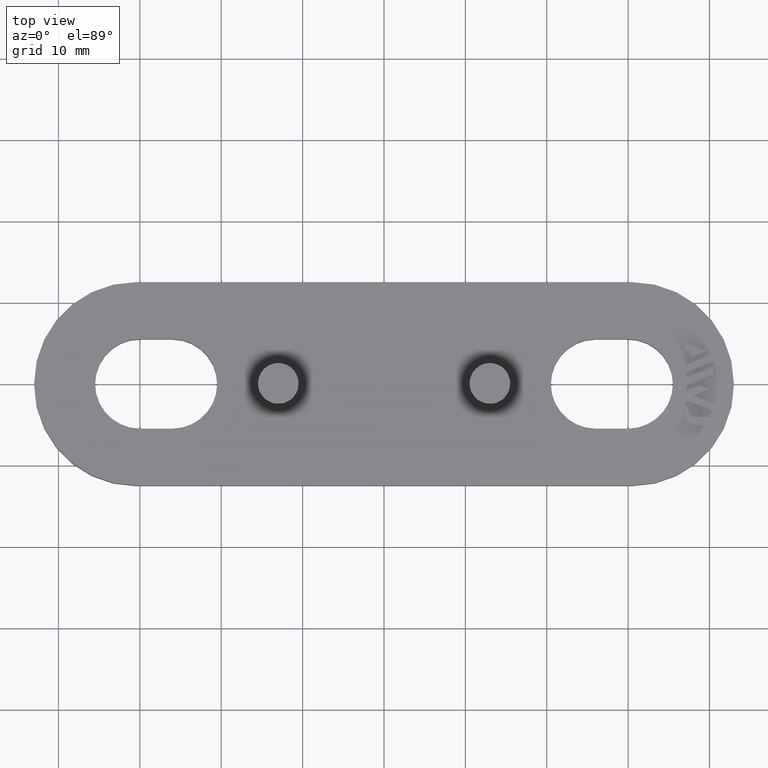
[diagram: clean part render]
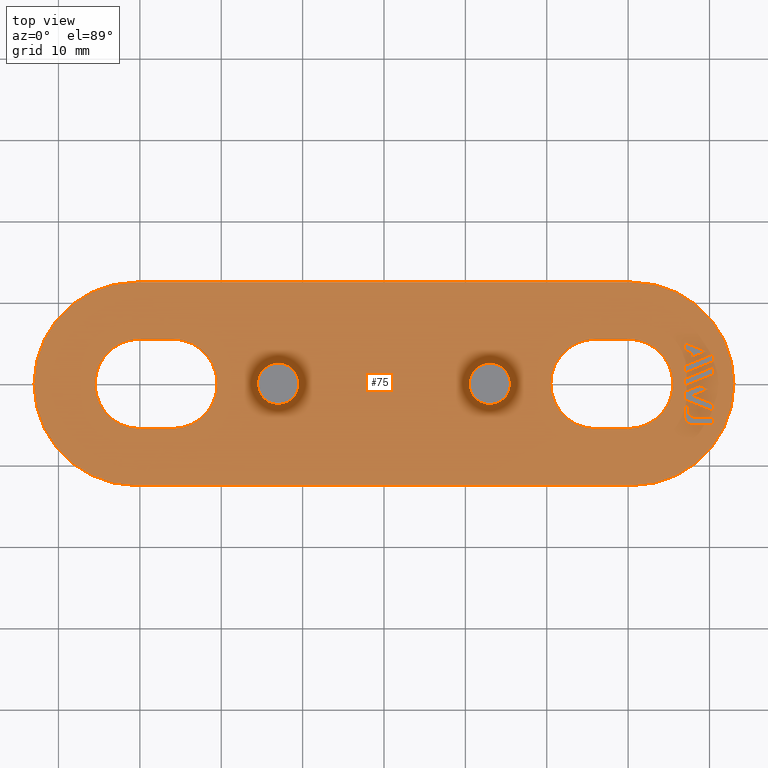
[diagram: same view with one face highlighted and labeled with its STEP entity id]
A machine part, top view. The second image highlights one B-rep face of the part: STEP entity #75.
In plain terms, the highlighted planar face has unit normal (0, -0, -1).
Its self-contained STEP definition (entity closure, byte-faithful):
#75 = ADVANCED_FACE( '', ( #354, #355, #356, #357, #358, #359, #360, #361, #362, #363 ), #364, .F. );
#354 = FACE_OUTER_BOUND( '', #962, .T. );
#355 = FACE_BOUND( '', #963, .T. );
#356 = FACE_BOUND( '', #964, .T. );
#357 = FACE_BOUND( '', #965, .T. );
#358 = FACE_BOUND( '', #966, .T. );
#359 = FACE_BOUND( '', #967, .T. );
#360 = FACE_BOUND( '', #968, .T. );
#361 = FACE_BOUND( '', #969, .T. );
#362 = FACE_BOUND( '', #970, .T. );
#363 = FACE_BOUND( '', #971, .T. );
#364 = PLANE( '', #972 );
#962 = EDGE_LOOP( '', ( #1570, #1571, #1572, #1573, #1574, #1575 ) );
#963 = EDGE_LOOP( '', ( #1576, #1577, #1578, #1579, #1580, #1581, #1582 ) );
#964 = EDGE_LOOP( '', ( #1583, #1584, #1585, #1586 ) );
#965 = EDGE_LOOP( '', ( #1587, #1588, #1589, #1590, #1591, #1592 ) );
#966 = EDGE_LOOP( '', ( #1593, #1594, #1595, #1596, #1597, #1598 ) );
#967 = EDGE_LOOP( '', ( #1599 ) );
#968 = EDGE_LOOP( '', ( #1600 ) );
#969 = EDGE_LOOP( '', ( #1601, #1602, #1603, #1604, #1605 ) );
#970 = EDGE_LOOP( '', ( #1606, #1607, #1608, #1609 ) );
#971 = EDGE_LOOP( '', ( #1610, #1611, #1612, #1613, #1614, #1615, #1616, #1617 ) );
#972 = AXIS2_PLACEMENT_3D( '', #1618, #1619, #1620 );
#1570 = ORIENTED_EDGE( '', *, *, #3796, .F. );
#1571 = ORIENTED_EDGE( '', *, *, #3797, .F. );
#1572 = ORIENTED_EDGE( '', *, *, #3798, .F. );
#1573 = ORIENTED_EDGE( '', *, *, #3799, .F. );
#1574 = ORIENTED_EDGE( '', *, *, #3800, .F. );
#1575 = ORIENTED_EDGE( '', *, *, #3801, .F. );
#1576 = ORIENTED_EDGE( '', *, *, #3802, .F. );
#1577 = ORIENTED_EDGE( '', *, *, #3803, .F. );
#1578 = ORIENTED_EDGE( '', *, *, #3804, .F. );
#1579 = ORIENTED_EDGE( '', *, *, #3805, .F. );
#1580 = ORIENTED_EDGE( '', *, *, #3806, .F. );
#1581 = ORIENTED_EDGE( '', *, *, #3807, .F. );
#1582 = ORIENTED_EDGE( '', *, *, #3808, .F. );
#1583 = ORIENTED_EDGE( '', *, *, #3809, .F. );
#1584 = ORIENTED_EDGE( '', *, *, #3810, .F. );
#1585 = ORIENTED_EDGE( '', *, *, #3811, .F. );
#1586 = ORIENTED_EDGE( '', *, *, #3812, .F. );
#1587 = ORIENTED_EDGE( '', *, *, #3813, .F. );
#1588 = ORIENTED_EDGE( '', *, *, #3814, .F. );
#1589 = ORIENTED_EDGE( '', *, *, #3815, .F. );
#1590 = ORIENTED_EDGE( '', *, *, #3816, .F. );
#1591 = ORIENTED_EDGE( '', *, *, #3817, .F. );
#1592 = ORIENTED_EDGE( '', *, *, #3818, .F. );
#1593 = ORIENTED_EDGE( '', *, *, #3819, .F. );
#1594 = ORIENTED_EDGE( '', *, *, #3820, .F. );
#1595 = ORIENTED_EDGE( '', *, *, #3821, .F. );
#1596 = ORIENTED_EDGE( '', *, *, #3822, .F. );
#1597 = ORIENTED_EDGE( '', *, *, #3823, .F. );
#1598 = ORIENTED_EDGE( '', *, *, #3824, .F. );
#1599 = ORIENTED_EDGE( '', *, *, #3825, .T. );
#1600 = ORIENTED_EDGE( '', *, *, #3826, .T. );
#1601 = ORIENTED_EDGE( '', *, *, #3827, .F. );
#1602 = ORIENTED_EDGE( '', *, *, #3828, .F. );
#1603 = ORIENTED_EDGE( '', *, *, #3829, .F. );
#1604 = ORIENTED_EDGE( '', *, *, #3830, .F. );
#1605 = ORIENTED_EDGE( '', *, *, #3831, .F. );
#1606 = ORIENTED_EDGE( '', *, *, #3832, .F. );
#1607 = ORIENTED_EDGE( '', *, *, #3833, .F. );
#1608 = ORIENTED_EDGE( '', *, *, #3834, .F. );
#1609 = ORIENTED_EDGE( '', *, *, #3835, .F. );
#1610 = ORIENTED_EDGE( '', *, *, #3836, .F. );
#1611 = ORIENTED_EDGE( '', *, *, #3837, .F. );
#1612 = ORIENTED_EDGE( '', *, *, #3838, .F. );
#1613 = ORIENTED_EDGE( '', *, *, #3839, .F. );
#1614 = ORIENTED_EDGE( '', *, *, #3840, .F. );
#1615 = ORIENTED_EDGE( '', *, *, #3841, .F. );
#1616 = ORIENTED_EDGE( '', *, *, #3842, .F. );
#1617 = ORIENTED_EDGE( '', *, *, #3843, .F. );
#1618 = CARTESIAN_POINT( '', ( 30.5000000000000, 3.06151588455594E-016, 4.99999999999999 ) );
#1619 = DIRECTION( '', ( 0.000000000000000, -6.12303176911189E-017, -1.00000000000000 ) );
#1620 = DIRECTION( '', ( 0.000000000000000, -1.00000000000000, 6.12303176911189E-017 ) );
#3796 = EDGE_CURVE( '', #4492, #4493, #4494, .T. );
#3797 = EDGE_CURVE( '', #4495, #4492, #4496, .T. );
#3798 = EDGE_CURVE( '', #4497, #4495, #4498, .T. );
#3799 = EDGE_CURVE( '', #4499, #4497, #4500, .T. );
#3800 = EDGE_CURVE( '', #4501, #4499, #4502, .T. );
#3801 = EDGE_CURVE( '', #4493, #4501, #4503, .T. );
#3802 = EDGE_CURVE( '', #4504, #4505, #4506, .T. );
#3803 = EDGE_CURVE( '', #4507, #4504, #4508, .T. );
#3804 = EDGE_CURVE( '', #4509, #4507, #4510, .T. );
#3805 = EDGE_CURVE( '', #4511, #4509, #4512, .T. );
#3806 = EDGE_CURVE( '', #4513, #4511, #4514, .T. );
#3807 = EDGE_CURVE( '', #4515, #4513, #4516, .T. );
#3808 = EDGE_CURVE( '', #4505, #4515, #4517, .T. );
#3809 = EDGE_CURVE( '', #4518, #4519, #4520, .T. );
#3810 = EDGE_CURVE( '', #4521, #4518, #4522, .T. );
#3811 = EDGE_CURVE( '', #4523, #4521, #4524, .T. );
#3812 = EDGE_CURVE( '', #4519, #4523, #4525, .T. );
#3813 = EDGE_CURVE( '', #4526, #4527, #4528, .T. );
#3814 = EDGE_CURVE( '', #4529, #4526, #4530, .T. );
#3815 = EDGE_CURVE( '', #4531, #4529, #4532, .T. );
#3816 = EDGE_CURVE( '', #4533, #4531, #4534, .T. );
#3817 = EDGE_CURVE( '', #4535, #4533, #4536, .T. );
#3818 = EDGE_CURVE( '', #4527, #4535, #4537, .T. );
#3819 = EDGE_CURVE( '', #4538, #4539, #4540, .T. );
#3820 = EDGE_CURVE( '', #4541, #4538, #4542, .T. );
#3821 = EDGE_CURVE( '', #4543, #4541, #4544, .T. );
#3822 = EDGE_CURVE( '', #4545, #4543, #4546, .T. );
#3823 = EDGE_CURVE( '', #4547, #4545, #4548, .T. );
#3824 = EDGE_CURVE( '', #4539, #4547, #4549, .T. );
#3825 = EDGE_CURVE( '', #4550, #4550, #4551, .T. );
#3826 = EDGE_CURVE( '', #4552, #4552, #4553, .T. );
#3827 = EDGE_CURVE( '', #4554, #4555, #4556, .T. );
#3828 = EDGE_CURVE( '', #4557, #4554, #4558, .T. );
#3829 = EDGE_CURVE( '', #4559, #4557, #4560, .T. );
#3830 = EDGE_CURVE( '', #4561, #4559, #4562, .T. );
#3831 = EDGE_CURVE( '', #4555, #4561, #4563, .T. );
#3832 = EDGE_CURVE( '', #4564, #4565, #4566, .T. );
#3833 = EDGE_CURVE( '', #4567, #4564, #4568, .T. );
#3834 = EDGE_CURVE( '', #4569, #4567, #4570, .T. );
#3835 = EDGE_CURVE( '', #4565, #4569, #4571, .T. );
#3836 = EDGE_CURVE( '', #4572, #4573, #4574, .T. );
#3837 = EDGE_CURVE( '', #4575, #4572, #4576, .T. );
#3838 = EDGE_CURVE( '', #4577, #4575, #4578, .T. );
#3839 = EDGE_CURVE( '', #4579, #4577, #4580, .T. );
#3840 = EDGE_CURVE( '', #4581, #4579, #4582, .T. );
#3841 = EDGE_CURVE( '', #4583, #4581, #4584, .T. );
#3842 = EDGE_CURVE( '', #4585, #4583, #4586, .T. );
#3843 = EDGE_CURVE( '', #4573, #4585, #4587, .T. );
#4492 = VERTEX_POINT( '', #5656 );
#4493 = VERTEX_POINT( '', #5657 );
#4494 = CIRCLE( '', #5658, 12.5000000000000 );
#4495 = VERTEX_POINT( '', #5659 );
#4496 = CIRCLE( '', #5660, 12.5000000000000 );
#4497 = VERTEX_POINT( '', #5661 );
#4498 = LINE( '', #5662, #5663 );
#4499 = VERTEX_POINT( '', #5664 );
#4500 = CIRCLE( '', #5665, 12.5000000000000 );
#4501 = VERTEX_POINT( '', #5666 );
#4502 = CIRCLE( '', #5667, 12.5000000000000 );
#4503 = LINE( '', #5668, #5669 );
#4504 = VERTEX_POINT( '', #5670 );
#4505 = VERTEX_POINT( '', #5671 );
#4506 = LINE( '', #5672, #5673 );
#4507 = VERTEX_POINT( '', #5674 );
#4508 = LINE( '', #5675, #5676 );
#4509 = VERTEX_POINT( '', #5677 );
#4510 = LINE( '', #5678, #5679 );
#4511 = VERTEX_POINT( '', #5680 );
#4512 = LINE( '', #5681, #5682 );
#4513 = VERTEX_POINT( '', #5683 );
#4514 = LINE( '', #5684, #5685 );
#4515 = VERTEX_POINT( '', #5686 );
#4516 = LINE( '', #5687, #5688 );
#4517 = LINE( '', #5689, #5690 );
#4518 = VERTEX_POINT( '', #5691 );
#4519 = VERTEX_POINT( '', #5692 );
#4520 = LINE( '', #5693, #5694 );
#4521 = VERTEX_POINT( '', #5695 );
#4522 = LINE( '', #5696, #5697 );
#4523 = VERTEX_POINT( '', #5698 );
#4524 = LINE( '', #5699, #5700 );
#4525 = LINE( '', #5701, #5702 );
#4526 = VERTEX_POINT( '', #5703 );
#4527 = VERTEX_POINT( '', #5704 );
#4528 = CIRCLE( '', #5705, 5.50000000000000 );
#4529 = VERTEX_POINT( '', #5706 );
#4530 = CIRCLE( '', #5707, 5.50000000000000 );
#4531 = VERTEX_POINT( '', #5708 );
#4532 = LINE( '', #5709, #5710 );
#4533 = VERTEX_POINT( '', #5711 );
#4534 = CIRCLE( '', #5712, 5.50000000000000 );
#4535 = VERTEX_POINT( '', #5713 );
#4536 = CIRCLE( '', #5714, 5.50000000000000 );
#4537 = LINE( '', #5715, #5716 );
#4538 = VERTEX_POINT( '', #5717 );
#4539 = VERTEX_POINT( '', #5718 );
#4540 = CIRCLE( '', #5719, 5.50000000000000 );
#4541 = VERTEX_POINT( '', #5720 );
#4542 = CIRCLE( '', #5721, 5.50000000000000 );
#4543 = VERTEX_POINT( '', #5722 );
#4544 = LINE( '', #5723, #5724 );
#4545 = VERTEX_POINT( '', #5725 );
#4546 = CIRCLE( '', #5726, 5.50000000000000 );
#4547 = VERTEX_POINT( '', #5727 );
#4548 = CIRCLE( '', #5728, 5.50000000000000 );
#4549 = LINE( '', #5729, #5730 );
#4550 = VERTEX_POINT( '', #5731 );
#4551 = CIRCLE( '', #5732, 2.54363766232054 );
#4552 = VERTEX_POINT( '', #5733 );
#4553 = CIRCLE( '', #5734, 2.54363766232054 );
#4554 = VERTEX_POINT( '', #5735 );
#4555 = VERTEX_POINT( '', #5736 );
#4556 = LINE( '', #5737, #5738 );
#4557 = VERTEX_POINT( '', #5739 );
#4558 = LINE( '', #5740, #5741 );
#4559 = VERTEX_POINT( '', #5742 );
#4560 = LINE( '', #5743, #5744 );
#4561 = VERTEX_POINT( '', #5745 );
#4562 = LINE( '', #5746, #5747 );
#4563 = LINE( '', #5748, #5749 );
#4564 = VERTEX_POINT( '', #5750 );
#4565 = VERTEX_POINT( '', #5751 );
#4566 = LINE( '', #5752, #5753 );
#4567 = VERTEX_POINT( '', #5754 );
#4568 = LINE( '', #5755, #5756 );
#4569 = VERTEX_POINT( '', #5757 );
#4570 = LINE( '', #5758, #5759 );
#4571 = LINE( '', #5760, #5761 );
#4572 = VERTEX_POINT( '', #5762 );
#4573 = VERTEX_POINT( '', #5763 );
#4574 = CIRCLE( '', #5764, 1.20000000000000 );
#4575 = VERTEX_POINT( '', #5765 );
#4576 = LINE( '', #5766, #5767 );
#4577 = VERTEX_POINT( '', #5768 );
#4578 = LINE( '', #5769, #5770 );
#4579 = VERTEX_POINT( '', #5771 );
#4580 = LINE( '', #5772, #5773 );
#4581 = VERTEX_POINT( '', #5774 );
#4582 = CIRCLE( '', #5775, 0.800000000000002 );
#4583 = VERTEX_POINT( '', #5776 );
#4584 = LINE( '', #5777, #5778 );
#4585 = VERTEX_POINT( '', #5779 );
#4586 = LINE( '', #5780, #5781 );
#4587 = LINE( '', #5782, #5783 );
#5656 = CARTESIAN_POINT( '', ( 43.0000000000000, 3.06151588455594E-016, 4.99999999999999 ) );
#5657 = CARTESIAN_POINT( '', ( 30.5000000000000, -12.5000000000000, 4.99999999999999 ) );
#5658 = AXIS2_PLACEMENT_3D( '', #7436, #7437, #7438 );
#5659 = CARTESIAN_POINT( '', ( 30.5000000000000, 12.5000000000000, 4.99999999999999 ) );
#5660 = AXIS2_PLACEMENT_3D( '', #7439, #7440, #7441 );
#5661 = CARTESIAN_POINT( '', ( -30.5000000000000, 12.5000000000000, 4.99999999999999 ) );
#5662 = CARTESIAN_POINT( '', ( -30.5000000000000, 12.5000000000000, 4.99999999999999 ) );
#5663 = VECTOR( '', #7442, 1000.00000000000 );
#5664 = CARTESIAN_POINT( '', ( -43.0000000000000, -1.42857188752121E-015, 4.99999999999999 ) );
#5665 = AXIS2_PLACEMENT_3D( '', #7443, #7444, #7445 );
#5666 = CARTESIAN_POINT( '', ( -30.5000000000000, -12.5000000000000, 4.99999999999999 ) );
#5667 = AXIS2_PLACEMENT_3D( '', #7446, #7447, #7448 );
#5668 = CARTESIAN_POINT( '', ( 30.5000000000000, -12.5000000000000, 4.99999999999999 ) );
#5669 = VECTOR( '', #7449, 1000.00000000000 );
#5670 = CARTESIAN_POINT( '', ( 36.9000000000000, -1.94153815900080, 4.99999999999999 ) );
#5671 = CARTESIAN_POINT( '', ( 40.4973661704647, -3.39489558569053, 4.99999999999999 ) );
#5672 = CARTESIAN_POINT( '', ( 36.9000000000000, -1.94153815900079, 4.99999999999999 ) );
#5673 = VECTOR( '', #7450, 1000.00000000000 );
#5674 = CARTESIAN_POINT( '', ( 36.9000000000000, -0.958868987414756, 4.99999999999999 ) );
#5675 = CARTESIAN_POINT( '', ( 36.9000000000000, -0.958868987414757, 4.99999999999999 ) );
#5676 = VECTOR( '', #7451, 1000.00000000000 );
#5677 = CARTESIAN_POINT( '', ( 38.7327570440905, -0.218257757464984, 4.99999999999999 ) );
#5678 = CARTESIAN_POINT( '', ( 38.7327570440905, -0.218257757464979, 4.99999999999999 ) );
#5679 = VECTOR( '', #7452, 1000.00000000000 );
#5680 = CARTESIAN_POINT( '', ( 39.8833737475896, -0.683055647481180, 4.99999999999999 ) );
#5681 = CARTESIAN_POINT( '', ( 39.8833737475896, -0.683055647481184, 4.99999999999999 ) );
#5682 = VECTOR( '', #7453, 1000.00000000000 );
#5683 = CARTESIAN_POINT( '', ( 37.9849571645033, -1.45010139340523, 4.99999999999999 ) );
#5684 = CARTESIAN_POINT( '', ( 37.9849571645033, -1.45010139340523, 4.99999999999999 ) );
#5685 = VECTOR( '', #7454, 1000.00000000000 );
#5686 = CARTESIAN_POINT( '', ( 40.4973661704647, -2.46529980565813, 4.99999999999999 ) );
#5687 = CARTESIAN_POINT( '', ( 40.4973661704647, -2.46529980565813, 4.99999999999999 ) );
#5688 = VECTOR( '', #7455, 1000.00000000000 );
#5689 = CARTESIAN_POINT( '', ( 40.4973661704647, -3.39489558569053, 4.99999999999999 ) );
#5690 = VECTOR( '', #7456, 1000.00000000000 );
#5691 = CARTESIAN_POINT( '', ( 36.9000000000000, 1.30847678860039, 4.99999999999999 ) );
#5692 = CARTESIAN_POINT( '', ( 40.4973661704647, 2.76206261720167, 4.99999999999999 ) );
#5693 = CARTESIAN_POINT( '', ( 36.9000000000000, 1.30847678860038, 4.99999999999999 ) );
#5694 = VECTOR( '', #7457, 1000.00000000000 );
#5695 = CARTESIAN_POINT( '', ( 36.9000000000000, 2.23799443113673, 4.99999999999999 ) );
#5696 = CARTESIAN_POINT( '', ( 36.9000000000000, 2.23799443113673, 4.99999999999999 ) );
#5697 = VECTOR( '', #7458, 1000.00000000000 );
#5698 = CARTESIAN_POINT( '', ( 40.4973661704647, 3.69137590013294, 4.99999999999999 ) );
#5699 = CARTESIAN_POINT( '', ( 40.4973661704647, 3.69137590013294, 4.99999999999999 ) );
#5700 = VECTOR( '', #7459, 1000.00000000000 );
#5701 = CARTESIAN_POINT( '', ( 40.4973661704647, 2.76206261720167, 4.99999999999999 ) );
#5702 = VECTOR( '', #7460, 1000.00000000000 );
#5703 = CARTESIAN_POINT( '', ( -20.5000000000000, 1.17351344890300E-015, 5.00000199997327 ) );
#5704 = CARTESIAN_POINT( '', ( -26.0000000000000, 5.50000000000000, 5.00000199997327 ) );
#5705 = AXIS2_PLACEMENT_3D( '', #7461, #7462, #7463 );
#5706 = CARTESIAN_POINT( '', ( -26.0000000000000, -5.50000000000000, 5.00000199997327 ) );
#5707 = AXIS2_PLACEMENT_3D( '', #7464, #7465, #7466 );
#5708 = CARTESIAN_POINT( '', ( -30.0000000000000, -5.50000000000000, 5.00000199997327 ) );
#5709 = CARTESIAN_POINT( '', ( -30.0000000000000, -5.50000000000000, 5.00000199997327 ) );
#5710 = VECTOR( '', #7467, 1000.00000000000 );
#5711 = CARTESIAN_POINT( '', ( -35.5000000000000, -2.29593350305062E-015, 5.00000199997327 ) );
#5712 = AXIS2_PLACEMENT_3D( '', #7468, #7469, #7470 );
#5713 = CARTESIAN_POINT( '', ( -30.0000000000000, 5.50000000000000, 5.00000199997327 ) );
#5714 = AXIS2_PLACEMENT_3D( '', #7471, #7472, #7473 );
#5715 = CARTESIAN_POINT( '', ( -26.0000000000000, 5.50000000000000, 5.00000199997327 ) );
#5716 = VECTOR( '', #7474, 1000.00000000000 );
#5717 = CARTESIAN_POINT( '', ( 35.5000000000000, 3.77559884655916E-015, 5.00000499997327 ) );
#5718 = CARTESIAN_POINT( '', ( 30.0000000000000, 5.50000000000000, 5.00000499997327 ) );
#5719 = AXIS2_PLACEMENT_3D( '', #7475, #7476, #7477 );
#5720 = CARTESIAN_POINT( '', ( 30.0000000000000, -5.49999999999999, 5.00000499997327 ) );
#5721 = AXIS2_PLACEMENT_3D( '', #7478, #7479, #7480 );
#5722 = CARTESIAN_POINT( '', ( 26.0000000000000, -5.50000000000000, 5.00000499997327 ) );
#5723 = CARTESIAN_POINT( '', ( 26.0000000000000, -5.49999999999999, 5.00000499997327 ) );
#5724 = VECTOR( '', #7481, 1000.00000000000 );
#5725 = CARTESIAN_POINT( '', ( 20.5000000000000, 2.90823710857076E-015, 5.00000499997327 ) );
#5726 = AXIS2_PLACEMENT_3D( '', #7482, #7483, #7484 );
#5727 = CARTESIAN_POINT( '', ( 26.0000000000000, 5.50000000000000, 5.00000499997327 ) );
#5728 = AXIS2_PLACEMENT_3D( '', #7485, #7486, #7487 );
#5729 = CARTESIAN_POINT( '', ( 30.0000000000000, 5.50000000000000, 5.00000499997327 ) );
#5730 = VECTOR( '', #7488, 1000.00000000000 );
#5731 = CARTESIAN_POINT( '', ( -13.0000000000000, 2.54380278691939, 4.99999999999999 ) );
#5732 = AXIS2_PLACEMENT_3D( '', #7489, #7490, #7491 );
#5733 = CARTESIAN_POINT( '', ( 13.0000000000000, 2.54347253772170, 4.99999999999999 ) );
#5734 = AXIS2_PLACEMENT_3D( '', #7492, #7493, #7494 );
#5735 = CARTESIAN_POINT( '', ( 36.9000000000000, 4.13597825270630, 4.99999999999999 ) );
#5736 = CARTESIAN_POINT( '', ( 37.7308540273208, 3.80004712542057, 4.99999999999999 ) );
#5737 = CARTESIAN_POINT( '', ( 36.9000000000000, 4.13597825270630, 4.99999999999999 ) );
#5738 = VECTOR( '', #7495, 1000.00000000000 );
#5739 = CARTESIAN_POINT( '', ( 36.9000000000000, 5.06529153563756, 4.99999999999999 ) );
#5740 = CARTESIAN_POINT( '', ( 36.9000000000000, 5.06529153563756, 4.99999999999999 ) );
#5741 = VECTOR( '', #7496, 1000.00000000000 );
#5742 = CARTESIAN_POINT( '', ( 39.5972101947165, 3.97568819540704, 4.99999999999999 ) );
#5743 = CARTESIAN_POINT( '', ( 39.5972101947165, 3.97568819540703, 4.99999999999999 ) );
#5744 = VECTOR( '', #7497, 1000.00000000000 );
#5745 = CARTESIAN_POINT( '', ( 37.7308540273208, 3.22197991900252, 4.99999999999999 ) );
#5746 = CARTESIAN_POINT( '', ( 37.7308540273208, 3.22197991900252, 4.99999999999999 ) );
#5747 = VECTOR( '', #7498, 1000.00000000000 );
#5748 = CARTESIAN_POINT( '', ( 37.7308540273208, 3.80004712542057, 4.99999999999999 ) );
#5749 = VECTOR( '', #7499, 1000.00000000000 );
#5750 = CARTESIAN_POINT( '', ( 36.9000000000000, -0.290000000000003, 4.99999999999999 ) );
#5751 = CARTESIAN_POINT( '', ( 40.4973661704647, 1.16358582860128, 4.99999999999999 ) );
#5752 = CARTESIAN_POINT( '', ( 36.9000000000000, -0.290000000000001, 4.99999999999999 ) );
#5753 = VECTOR( '', #7500, 1000.00000000000 );
#5754 = CARTESIAN_POINT( '', ( 36.9000000000000, 0.639583758879155, 4.99999999999999 ) );
#5755 = CARTESIAN_POINT( '', ( 36.9000000000000, 0.639583758879153, 4.99999999999999 ) );
#5756 = VECTOR( '', #7501, 1000.00000000000 );
#5757 = CARTESIAN_POINT( '', ( 40.4973661704647, 2.09316958748044, 4.99999999999999 ) );
#5758 = CARTESIAN_POINT( '', ( 40.4973661704647, 2.09316958748044, 4.99999999999999 ) );
#5759 = VECTOR( '', #7502, 1000.00000000000 );
#5760 = CARTESIAN_POINT( '', ( 40.4973661704647, 1.16358582860128, 4.99999999999999 ) );
#5761 = VECTOR( '', #7503, 1000.00000000000 );
#5762 = CARTESIAN_POINT( '', ( 36.9000000000000, -3.87288028181885, 4.99999999999999 ) );
#5763 = CARTESIAN_POINT( '', ( 38.1000000000000, -5.07288028181884, 4.99999999999999 ) );
#5764 = AXIS2_PLACEMENT_3D( '', #7504, #7505, #7506 );
#5765 = CARTESIAN_POINT( '', ( 36.9000000000000, -2.61040714641555, 4.99999999999999 ) );
#5766 = CARTESIAN_POINT( '', ( 36.9000000000000, -2.61040714641554, 4.99999999999999 ) );
#5767 = VECTOR( '', #7507, 1000.00000000000 );
#5768 = CARTESIAN_POINT( '', ( 37.4231249674404, -2.82176335265061, 4.99999999999999 ) );
#5769 = CARTESIAN_POINT( '', ( 37.4231249674404, -2.82176335265061, 4.99999999999999 ) );
#5770 = VECTOR( '', #7508, 1000.00000000000 );
#5771 = CARTESIAN_POINT( '', ( 37.4231249674403, -3.33274195062397, 4.99999999999999 ) );
#5772 = CARTESIAN_POINT( '', ( 37.4231249674404, -3.33274195062397, 4.99999999999999 ) );
#5773 = VECTOR( '', #7509, 1000.00000000000 );
#5774 = CARTESIAN_POINT( '', ( 38.2231249674403, -4.13274195062398, 4.99999999999999 ) );
#5775 = AXIS2_PLACEMENT_3D( '', #7510, #7511, #7512 );
#5776 = CARTESIAN_POINT( '', ( 40.4973661704647, -4.13274195062397, 4.99999999999999 ) );
#5777 = CARTESIAN_POINT( '', ( 40.4973661704647, -4.13274195062398, 4.99999999999999 ) );
#5778 = VECTOR( '', #7513, 1000.00000000000 );
#5779 = CARTESIAN_POINT( '', ( 40.4973661704647, -5.07288028181884, 4.99999999999999 ) );
#5780 = CARTESIAN_POINT( '', ( 40.4973661704647, -5.07288028181884, 4.99999999999999 ) );
#5781 = VECTOR( '', #7514, 1000.00000000000 );
#5782 = CARTESIAN_POINT( '', ( 38.1000000000000, -5.07288028181884, 4.99999999999999 ) );
#5783 = VECTOR( '', #7515, 1000.00000000000 );
#7436 = CARTESIAN_POINT( '', ( 30.5000000000000, 3.06151588455594E-016, 4.99999999999999 ) );
#7437 = DIRECTION( '', ( 0.000000000000000, -6.12303176911189E-017, -1.00000000000000 ) );
#7438 = DIRECTION( '', ( 0.000000000000000, 1.00000000000000, -6.12303176911189E-017 ) );
#7439 = CARTESIAN_POINT( '', ( 30.5000000000000, 3.06151588455594E-016, 4.99999999999999 ) );
#7440 = DIRECTION( '', ( 0.000000000000000, -6.12303176911189E-017, -1.00000000000000 ) );
#7441 = DIRECTION( '', ( 0.000000000000000, 1.00000000000000, -6.12303176911189E-017 ) );
#7442 = DIRECTION( '', ( 1.00000000000000, 0.000000000000000, 0.000000000000000 ) );
#7443 = CARTESIAN_POINT( '', ( -30.5000000000000, 3.06151588455594E-016, 4.99999999999999 ) );
#7444 = DIRECTION( '', ( 0.000000000000000, -6.12303176911189E-017, -1.00000000000000 ) );
#7445 = DIRECTION( '', ( 0.000000000000000, 1.00000000000000, -6.12303176911189E-017 ) );
#7446 = CARTESIAN_POINT( '', ( -30.5000000000000, 3.06151588455594E-016, 4.99999999999999 ) );
#7447 = DIRECTION( '', ( 0.000000000000000, -6.12303176911189E-017, -1.00000000000000 ) );
#7448 = DIRECTION( '', ( 0.000000000000000, 1.00000000000000, -6.12303176911189E-017 ) );
#7449 = DIRECTION( '', ( -1.00000000000000, 0.000000000000000, 0.000000000000000 ) );
#7450 = DIRECTION( '', ( 0.927190376050329, -0.374590451773198, 1.20367158126883E-017 ) );
#7451 = DIRECTION( '', ( -6.12303176911189E-017, -1.00000000000000, 1.83690953073357E-016 ) );
#7452 = DIRECTION( '', ( -0.927161130553612, -0.374662832411421, 1.25592543341472E-016 ) );
#7453 = DIRECTION( '', ( -0.927206645422846, 0.374550179126525, -1.20283219129903E-017 ) );
#7454 = DIRECTION( '', ( 0.927177805503196, 0.374621565025663, -1.25585983908512E-016 ) );
#7455 = DIRECTION( '', ( -0.927168564368796, 0.374644435760503, -1.20479677189568E-017 ) );
#7456 = DIRECTION( '', ( 6.12303176911189E-017, 1.00000000000000, -1.83690953073357E-016 ) );
#7457 = DIRECTION( '', ( 0.927169929060563, 0.374641058409020, -1.25589082389594E-016 ) );
#7458 = DIRECTION( '', ( -6.12303176911189E-017, -1.00000000000000, 1.83690953073357E-016 ) );
#7459 = DIRECTION( '', ( -0.927188223823226, -0.374595778945159, 1.25581885155853E-016 ) );
#7460 = DIRECTION( '', ( 6.12303176911189E-017, 1.00000000000000, -1.83690953073357E-016 ) );
#7461 = CARTESIAN_POINT( '', ( -26.0000000000000, -5.61210027073811E-016, 5.00000199997327 ) );
#7462 = DIRECTION( '', ( 1.44762238050084E-048, 6.12303176911189E-017, 1.00000000000000 ) );
#7463 = DIRECTION( '', ( 5.78241158658936E-017, -1.00000000000000, 6.12303176911189E-017 ) );
#7464 = CARTESIAN_POINT( '', ( -26.0000000000000, -4.89801871701583E-015, 5.00000199997327 ) );
#7465 = DIRECTION( '', ( 7.23811190250422E-049, 6.12303176911189E-017, 1.00000000000000 ) );
#7466 = DIRECTION( '', ( 5.78241158658936E-017, -1.00000000000000, 6.12303176911189E-017 ) );
#7467 = DIRECTION( '', ( 1.00000000000000, 5.78241158658936E-017, -3.54058898467673E-033 ) );
#7468 = CARTESIAN_POINT( '', ( -30.0000000000000, -3.16329524103902E-015, 5.00000199997327 ) );
#7469 = DIRECTION( '', ( 1.44762238050084E-048, 6.12303176911189E-017, 1.00000000000000 ) );
#7470 = DIRECTION( '', ( 5.78241158658936E-017, -1.00000000000000, 6.12303176911189E-017 ) );
#7471 = CARTESIAN_POINT( '', ( -30.0000000000000, -2.29593350305062E-015, 5.00000199997327 ) );
#7472 = DIRECTION( '', ( 0.000000000000000, 6.12303176911189E-017, 1.00000000000000 ) );
#7473 = DIRECTION( '', ( 5.78241158658936E-017, -1.00000000000000, 6.12303176911189E-017 ) );
#7474 = DIRECTION( '', ( -1.00000000000000, -5.78241158658936E-017, 3.54058898467673E-033 ) );
#7475 = CARTESIAN_POINT( '', ( 30.0000000000000, 2.90823710857076E-015, 5.00000499997327 ) );
#7476 = DIRECTION( '', ( 0.000000000000000, 6.12303176911189E-017, 1.00000000000000 ) );
#7477 = DIRECTION( '', ( 5.78241158658935E-017, -1.00000000000000, 6.12303176911189E-017 ) );
#7478 = CARTESIAN_POINT( '', ( 30.0000000000000, 3.77559884655916E-015, 5.00000499997327 ) );
#7479 = DIRECTION( '', ( 0.000000000000000, 6.12303176911189E-017, 1.00000000000000 ) );
#7480 = DIRECTION( '', ( 5.78241158658935E-017, -1.00000000000000, 6.12303176911189E-017 ) );
#7481 = DIRECTION( '', ( 1.00000000000000, 5.78241158658936E-017, -3.54058898467673E-033 ) );
#7482 = CARTESIAN_POINT( '', ( 26.0000000000000, 3.77559884655916E-015, 5.00000499997327 ) );
#7483 = DIRECTION( '', ( 0.000000000000000, 6.12303176911189E-017, 1.00000000000000 ) );
#7484 = DIRECTION( '', ( 5.78241158658935E-017, -1.00000000000000, 6.12303176911189E-017 ) );
#7485 = CARTESIAN_POINT( '', ( 26.0000000000000, 2.90823710857076E-015, 5.00000499997327 ) );
#7486 = DIRECTION( '', ( 0.000000000000000, 6.12303176911189E-017, 1.00000000000000 ) );
#7487 = DIRECTION( '', ( 5.78241158658935E-017, -1.00000000000000, 6.12303176911189E-017 ) );
#7488 = DIRECTION( '', ( -1.00000000000000, -5.78241158658935E-017, 3.54058898467673E-033 ) );
#7489 = CARTESIAN_POINT( '', ( -13.0000000000000, 0.000165124598850130, 4.99999999999999 ) );
#7490 = DIRECTION( '', ( 0.000000000000000, -6.12303176911189E-017, -1.00000000000000 ) );
#7491 = DIRECTION( '', ( 0.000000000000000, 1.00000000000000, -6.12303176911189E-017 ) );
#7492 = CARTESIAN_POINT( '', ( 13.0000000000000, -0.000165124598847783, 4.99999999999999 ) );
#7493 = DIRECTION( '', ( 0.000000000000000, -6.12303176911189E-017, -1.00000000000000 ) );
#7494 = DIRECTION( '', ( 0.000000000000000, 1.00000000000000, -6.12303176911189E-017 ) );
#7495 = DIRECTION( '', ( 0.927089140205383, -0.374840934415178, 1.20889259108699E-017 ) );
#7496 = DIRECTION( '', ( -5.71916645986102E-018, -1.00000000000000, 1.83690953073357E-016 ) );
#7497 = DIRECTION( '', ( -0.927200607094025, 0.374565126786346, -1.20314373916611E-017 ) );
#7498 = DIRECTION( '', ( 0.927243990558706, 0.374457717202846, -1.25559939077755E-016 ) );
#7499 = DIRECTION( '', ( -6.12303176911189E-017, -1.00000000000000, 1.83690953073357E-016 ) );
#7500 = DIRECTION( '', ( 0.927169929060563, 0.374641058409019, -1.25589082389594E-016 ) );
#7501 = DIRECTION( '', ( -2.83274922616150E-016, -1.00000000000000, 1.83690953073357E-016 ) );
#7502 = DIRECTION( '', ( -0.927169929060563, -0.374641058409019, 1.25589082389594E-016 ) );
#7503 = DIRECTION( '', ( 2.83274922616150E-016, 1.00000000000000, -1.83690953073357E-016 ) );
#7504 = CARTESIAN_POINT( '', ( 38.1000000000000, -3.87288028181884, 4.99999999999999 ) );
#7505 = DIRECTION( '', ( 1.90063268273223E-048, 6.12303176911189E-017, 1.00000000000000 ) );
#7506 = DIRECTION( '', ( -1.00000000000000, 6.12303176911188E-017, -3.74915180455534E-033 ) );
#7507 = DIRECTION( '', ( -6.12303176911189E-017, -1.00000000000000, 1.83690953073357E-016 ) );
#7508 = DIRECTION( '', ( -0.927183854566787, 0.374606593415912, -1.20400801989317E-017 ) );
#7509 = DIRECTION( '', ( 6.12303176911189E-017, 1.00000000000000, -1.83690953073357E-016 ) );
#7510 = CARTESIAN_POINT( '', ( 38.2231249674403, -3.33274195062397, 4.99999999999999 ) );
#7511 = DIRECTION( '', ( -1.06910588403687E-048, -6.12303176911189E-017, -1.00000000000000 ) );
#7512 = DIRECTION( '', ( -6.12303176911189E-017, -1.00000000000000, 6.12303176911189E-017 ) );
#7513 = DIRECTION( '', ( -1.00000000000000, 1.21945639350307E-016, 6.12303176911189E-017 ) );
#7514 = DIRECTION( '', ( 6.12303176911189E-017, 1.00000000000000, -1.83690953073357E-016 ) );
#7515 = DIRECTION( '', ( 1.00000000000000, -1.21945639350307E-016, -6.12303176911188E-017 ) );